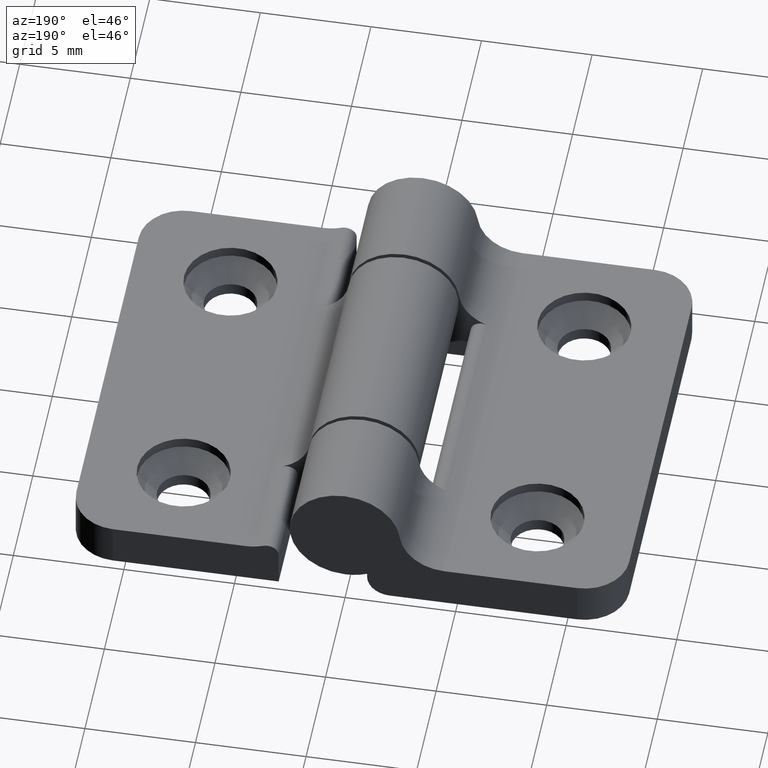
[diagram: clean part render]
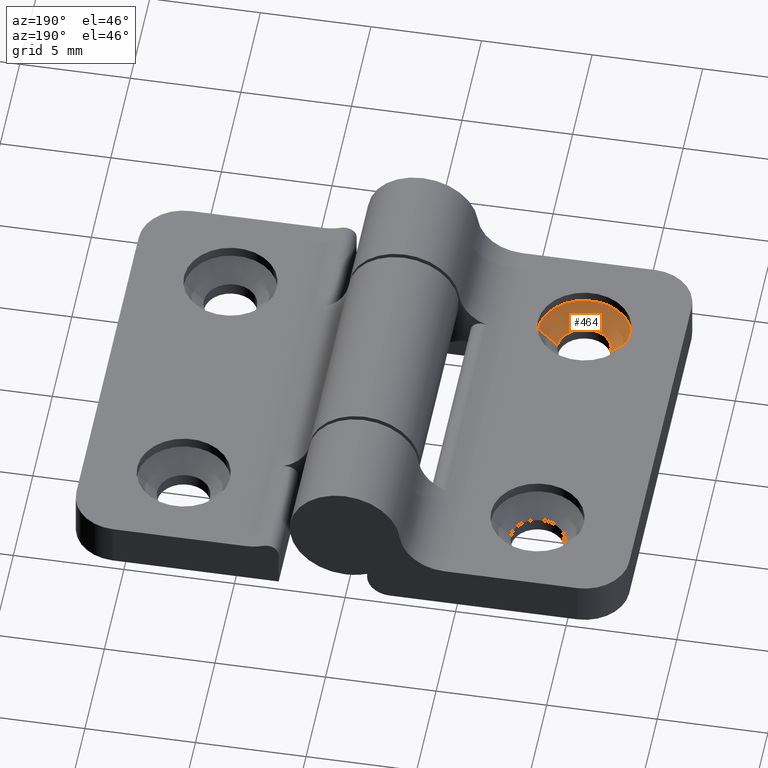
[diagram: same view with one face highlighted and labeled with its STEP entity id]
A machine part, auxiliary view. The second image highlights one B-rep face of the part: STEP entity #464.
In plain terms, the highlighted conical surface has half-angle 45 deg.
Its self-contained STEP definition (entity closure, byte-faithful):
#56 = DIRECTION ( 'NONE',  ( 1.000000000000000000, 0.0000000000000000000, 0.0000000000000000000 ) ) ;
#123 = CARTESIAN_POINT ( 'NONE',  ( -6.799999999999999800, 4.000000000000000000, -2.899999999999996800 ) ) ;
#250 = EDGE_CURVE ( 'NONE', #2096, #2080, #647, .T. ) ;
#340 = EDGE_CURVE ( 'NONE', #1755, #1219, #1411, .T. ) ;
#363 = CONICAL_SURFACE ( 'NONE', #2246, 2.100000000000001000, 0.7853981633974500600 ) ;
#372 = ORIENTED_EDGE ( 'NONE', *, *, #340, .F. ) ;
#388 = EDGE_LOOP ( 'NONE', ( #1610, #1791, #439, #372 ) ) ;
#396 = CIRCLE ( 'NONE', #749, 1.200000000000000600 ) ;
#433 = FACE_OUTER_BOUND ( 'NONE', #388, .T. ) ;
#439 = ORIENTED_EDGE ( 'NONE', *, *, #1688, .T. ) ;
#464 = ADVANCED_FACE ( 'NONE', ( #433 ), #363, .F. ) ;
#647 = LINE ( 'NONE', #2225, #2174 ) ;
#722 = CARTESIAN_POINT ( 'NONE',  ( -5.899999999999998600, 4.000000000000000000, -1.999999999999999600 ) ) ;
#749 = AXIS2_PLACEMENT_3D ( 'NONE', #1421, #2369, #56 ) ;
#756 = EDGE_CURVE ( 'NONE', #2096, #1755, #396, .T. ) ;
#849 = DIRECTION ( 'NONE',  ( -0.0000000000000000000, -0.0000000000000000000, 1.000000000000000000 ) ) ;
#903 = DIRECTION ( 'NONE',  ( 0.0000000000000000000, 0.0000000000000000000, 1.000000000000000000 ) ) ;
#1015 = AXIS2_PLACEMENT_3D ( 'NONE', #2055, #903, #2242 ) ;
#1027 = DIRECTION ( 'NONE',  ( 1.000000000000000000, 0.0000000000000000000, 0.0000000000000000000 ) ) ;
#1051 = CARTESIAN_POINT ( 'NONE',  ( -10.10000000000000100, 4.000000000000000000, -1.999999999999999600 ) ) ;
#1058 = CARTESIAN_POINT ( 'NONE',  ( -9.199999999999999300, 4.000000000000000000, -2.899999999999996800 ) ) ;
#1219 = VERTEX_POINT ( 'NONE', #1730 ) ;
#1361 = VECTOR ( 'NONE', #1644, 1000.000000000000000 ) ;
#1411 = LINE ( 'NONE', #722, #1361 ) ;
#1421 = CARTESIAN_POINT ( 'NONE',  ( -8.000000000000000000, 4.000000000000000000, -2.899999999999996800 ) ) ;
#1610 = ORIENTED_EDGE ( 'NONE', *, *, #756, .F. ) ;
#1644 = DIRECTION ( 'NONE',  ( 0.7071067811865487900, 0.0000000000000000000, 0.7071067811865463500 ) ) ;
#1688 = EDGE_CURVE ( 'NONE', #2080, #1219, #1806, .T. ) ;
#1730 = CARTESIAN_POINT ( 'NONE',  ( -5.899999999999998600, 4.000000000000000000, -1.999999999999999600 ) ) ;
#1755 = VERTEX_POINT ( 'NONE', #123 ) ;
#1791 = ORIENTED_EDGE ( 'NONE', *, *, #250, .T. ) ;
#1806 = CIRCLE ( 'NONE', #1015, 2.100000000000001000 ) ;
#1853 = DIRECTION ( 'NONE',  ( -0.7071067811865487900, 8.659560562354948900E-017, 0.7071067811865463500 ) ) ;
#2055 = CARTESIAN_POINT ( 'NONE',  ( -8.000000000000000000, 4.000000000000000000, -1.999999999999999600 ) ) ;
#2080 = VERTEX_POINT ( 'NONE', #1051 ) ;
#2096 = VERTEX_POINT ( 'NONE', #1058 ) ;
#2174 = VECTOR ( 'NONE', #1853, 1000.000000000000000 ) ;
#2189 = CARTESIAN_POINT ( 'NONE',  ( -8.000000000000000000, 4.000000000000000000, -1.999999999999999600 ) ) ;
#2225 = CARTESIAN_POINT ( 'NONE',  ( -10.10000000000000100, 4.000000000000000000, -1.999999999999999600 ) ) ;
#2242 = DIRECTION ( 'NONE',  ( 1.000000000000000000, 0.0000000000000000000, 0.0000000000000000000 ) ) ;
#2246 = AXIS2_PLACEMENT_3D ( 'NONE', #2189, #849, #1027 ) ;
#2369 = DIRECTION ( 'NONE',  ( -0.0000000000000000000, -0.0000000000000000000, 1.000000000000000000 ) ) ;